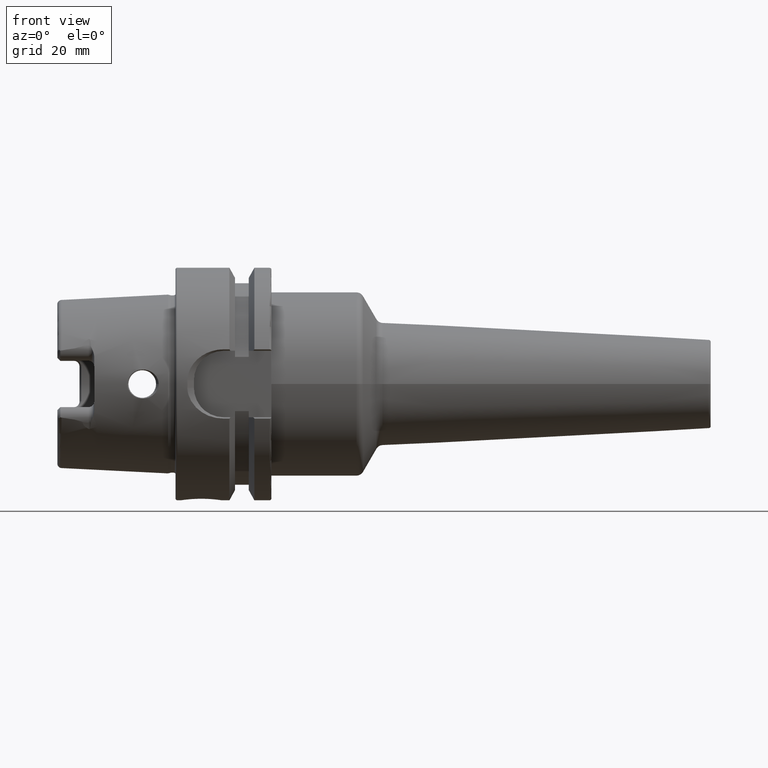
[diagram: clean part render]
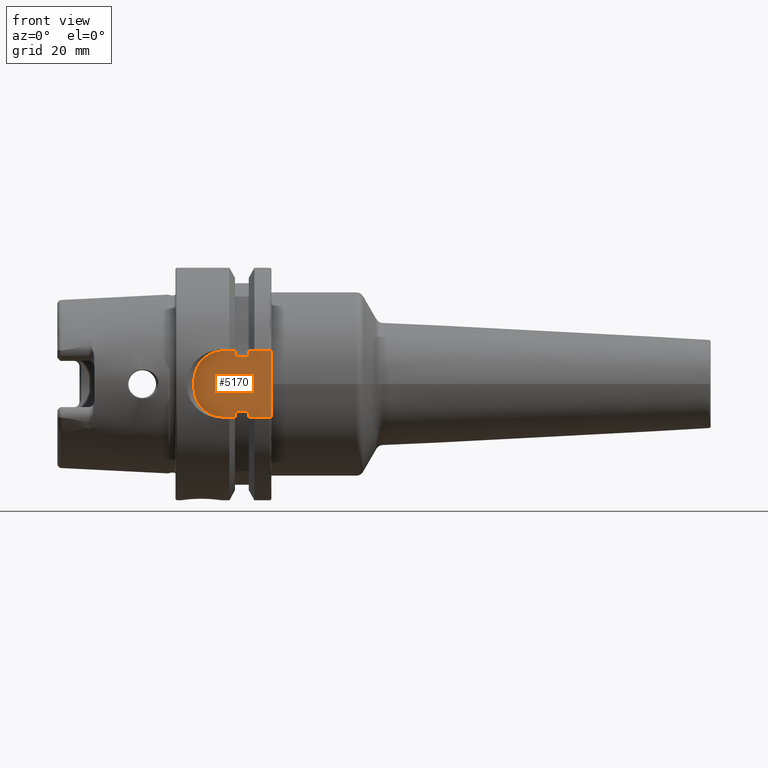
[diagram: same view with one face highlighted and labeled with its STEP entity id]
A machine part, front view. The second image highlights one B-rep face of the part: STEP entity #5170.
In plain terms, the highlighted planar face has unit normal (0, 1, 0).
Its self-contained STEP definition (entity closure, byte-faithful):
#675=DIRECTION('',(0.E0,0.E0,1.E0));
#676=VECTOR('',#675,1.8E1);
#677=CARTESIAN_POINT('',(2.6E1,-2.65E1,-9.E0));
#678=LINE('',#677,#676);
#1973=DIRECTION('',(0.E0,0.E0,1.E0));
#1974=VECTOR('',#1973,1.651530771650E0);
#1975=CARTESIAN_POINT('',(1.6125E1,-2.65E1,-9.E0));
#1976=LINE('',#1975,#1974);
#2005=DIRECTION('',(0.E0,0.E0,1.E0));
#2006=VECTOR('',#2005,1.651530771650E0);
#2007=CARTESIAN_POINT('',(1.6125E1,-2.65E1,7.348469228350E0));
#2008=LINE('',#2007,#2006);
#2013=CARTESIAN_POINT('',(1.3E1,-2.65E1,1.E0));
#2014=DIRECTION('',(0.E0,-1.E0,0.E0));
#2015=DIRECTION('',(0.E0,0.E0,1.E0));
#2016=AXIS2_PLACEMENT_3D('',#2013,#2014,#2015);
#2018=DIRECTION('',(1.E0,0.E0,0.E0));
#2019=VECTOR('',#2018,3.125E0);
#2020=CARTESIAN_POINT('',(1.3E1,-2.65E1,9.E0));
#2021=LINE('',#2020,#2019);
#2022=DIRECTION('',(1.E0,0.E0,0.E0));
#2023=VECTOR('',#2022,6.125E0);
#2024=CARTESIAN_POINT('',(1.9875E1,-2.65E1,9.E0));
#2025=LINE('',#2024,#2023);
#2026=DIRECTION('',(-1.E0,0.E0,0.E0));
#2027=VECTOR('',#2026,6.125E0);
#2028=CARTESIAN_POINT('',(2.6E1,-2.65E1,-9.E0));
#2029=LINE('',#2028,#2027);
#2030=DIRECTION('',(-1.E0,0.E0,0.E0));
#2031=VECTOR('',#2030,3.125E0);
#2032=CARTESIAN_POINT('',(1.6125E1,-2.65E1,-9.E0));
#2033=LINE('',#2032,#2031);
#2034=CARTESIAN_POINT('',(1.3E1,-2.65E1,-1.E0));
#2035=DIRECTION('',(0.E0,-1.E0,0.E0));
#2036=DIRECTION('',(-1.E0,0.E0,0.E0));
#2037=AXIS2_PLACEMENT_3D('',#2034,#2035,#2036);
#2039=DIRECTION('',(0.E0,0.E0,1.E0));
#2040=VECTOR('',#2039,2.E0);
#2041=CARTESIAN_POINT('',(5.E0,-2.65E1,-1.E0));
#2042=LINE('',#2041,#2040);
#2202=DIRECTION('',(0.E0,0.E0,1.E0));
#2203=VECTOR('',#2202,1.651530771650E0);
#2204=CARTESIAN_POINT('',(1.9875E1,-2.65E1,-9.E0));
#2205=LINE('',#2204,#2203);
#2226=DIRECTION('',(0.E0,0.E0,1.E0));
#2227=VECTOR('',#2226,1.651530771650E0);
#2228=CARTESIAN_POINT('',(1.9875E1,-2.65E1,7.348469228350E0));
#2229=LINE('',#2228,#2227);
#2360=DIRECTION('',(1.E0,0.E0,0.E0));
#2361=VECTOR('',#2360,3.75E0);
#2362=CARTESIAN_POINT('',(1.6125E1,-2.65E1,7.348469228350E0));
#2363=LINE('',#2362,#2361);
#2378=DIRECTION('',(1.E0,0.E0,0.E0));
#2379=VECTOR('',#2378,3.75E0);
#2380=CARTESIAN_POINT('',(1.6125E1,-2.65E1,-7.348469228350E0));
#2381=LINE('',#2380,#2379);
#2533=CARTESIAN_POINT('',(2.6E1,-2.65E1,-9.E0));
#2534=CARTESIAN_POINT('',(2.6E1,-2.65E1,9.E0));
#2535=VERTEX_POINT('',#2533);
#2536=VERTEX_POINT('',#2534);
#2537=CARTESIAN_POINT('',(1.6125E1,-2.65E1,-9.E0));
#2538=CARTESIAN_POINT('',(1.6125E1,-2.65E1,-7.348469228350E0));
#2539=VERTEX_POINT('',#2537);
#2540=VERTEX_POINT('',#2538);
#2541=CARTESIAN_POINT('',(1.6125E1,-2.65E1,7.348469228350E0));
#2542=CARTESIAN_POINT('',(1.6125E1,-2.65E1,9.E0));
#2543=VERTEX_POINT('',#2541);
#2544=VERTEX_POINT('',#2542);
#2549=CARTESIAN_POINT('',(1.9875E1,-2.65E1,7.348469228350E0));
#2550=VERTEX_POINT('',#2549);
#2551=CARTESIAN_POINT('',(1.9875E1,-2.65E1,-7.348469228350E0));
#2552=VERTEX_POINT('',#2551);
#2553=CARTESIAN_POINT('',(1.9875E1,-2.65E1,-9.E0));
#2554=VERTEX_POINT('',#2553);
#2555=CARTESIAN_POINT('',(1.9875E1,-2.65E1,9.E0));
#2556=VERTEX_POINT('',#2555);
#2561=CARTESIAN_POINT('',(1.3E1,-2.65E1,9.E0));
#2562=CARTESIAN_POINT('',(5.E0,-2.65E1,1.E0));
#2563=VERTEX_POINT('',#2561);
#2564=VERTEX_POINT('',#2562);
#2565=CARTESIAN_POINT('',(5.E0,-2.65E1,-1.E0));
#2566=CARTESIAN_POINT('',(1.3E1,-2.65E1,-9.E0));
#2567=VERTEX_POINT('',#2565);
#2568=VERTEX_POINT('',#2566);
#5140=CARTESIAN_POINT('',(0.E0,-2.65E1,0.E0));
#5141=DIRECTION('',(0.E0,1.E0,0.E0));
#5142=DIRECTION('',(-1.E0,0.E0,0.E0));
#5143=AXIS2_PLACEMENT_3D('',#5140,#5141,#5142);
#5144=PLANE('',#5143);
#5146=ORIENTED_EDGE('',*,*,#5145,.F.);
#5147=ORIENTED_EDGE('',*,*,#5073,.T.);
#5148=ORIENTED_EDGE('',*,*,#5133,.F.);
#5150=ORIENTED_EDGE('',*,*,#5149,.T.);
#5152=ORIENTED_EDGE('',*,*,#5151,.T.);
#5153=ORIENTED_EDGE('',*,*,#5088,.T.);
#5154=ORIENTED_EDGE('',*,*,#3690,.F.);
#5156=ORIENTED_EDGE('',*,*,#5155,.T.);
#5158=ORIENTED_EDGE('',*,*,#5157,.T.);
#5160=ORIENTED_EDGE('',*,*,#5159,.F.);
#5161=ORIENTED_EDGE('',*,*,#5103,.F.);
#5163=ORIENTED_EDGE('',*,*,#5162,.T.);
#5165=ORIENTED_EDGE('',*,*,#5164,.F.);
#5167=ORIENTED_EDGE('',*,*,#5166,.T.);
#5168=EDGE_LOOP('',(#5146,#5147,#5148,#5150,#5152,#5153,#5154,#5156,#5158,#5160,
#5161,#5163,#5165,#5167));
#5169=FACE_OUTER_BOUND('',#5168,.F.);
#5170=ADVANCED_FACE('',(#5169),#5144,.F.);
#2017=CIRCLE('',#2016,8.E0);
#2038=CIRCLE('',#2037,8.E0);
#3690=EDGE_CURVE('',#2535,#2536,#678,.T.);
#5073=EDGE_CURVE('',#2563,#2544,#2021,.T.);
#5088=EDGE_CURVE('',#2556,#2536,#2025,.T.);
#5103=EDGE_CURVE('',#2539,#2540,#1976,.T.);
#5133=EDGE_CURVE('',#2543,#2544,#2008,.T.);
#5145=EDGE_CURVE('',#2563,#2564,#2017,.T.);
#5149=EDGE_CURVE('',#2543,#2550,#2363,.T.);
#5151=EDGE_CURVE('',#2550,#2556,#2229,.T.);
#5155=EDGE_CURVE('',#2535,#2554,#2029,.T.);
#5157=EDGE_CURVE('',#2554,#2552,#2205,.T.);
#5159=EDGE_CURVE('',#2540,#2552,#2381,.T.);
#5162=EDGE_CURVE('',#2539,#2568,#2033,.T.);
#5164=EDGE_CURVE('',#2567,#2568,#2038,.T.);
#5166=EDGE_CURVE('',#2567,#2564,#2042,.T.);